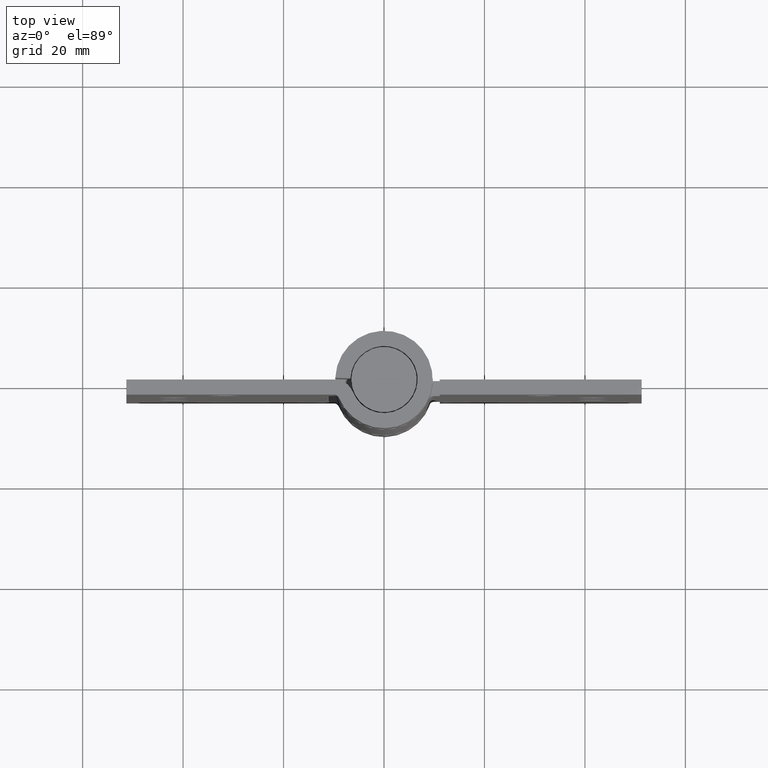
[diagram: clean part render]
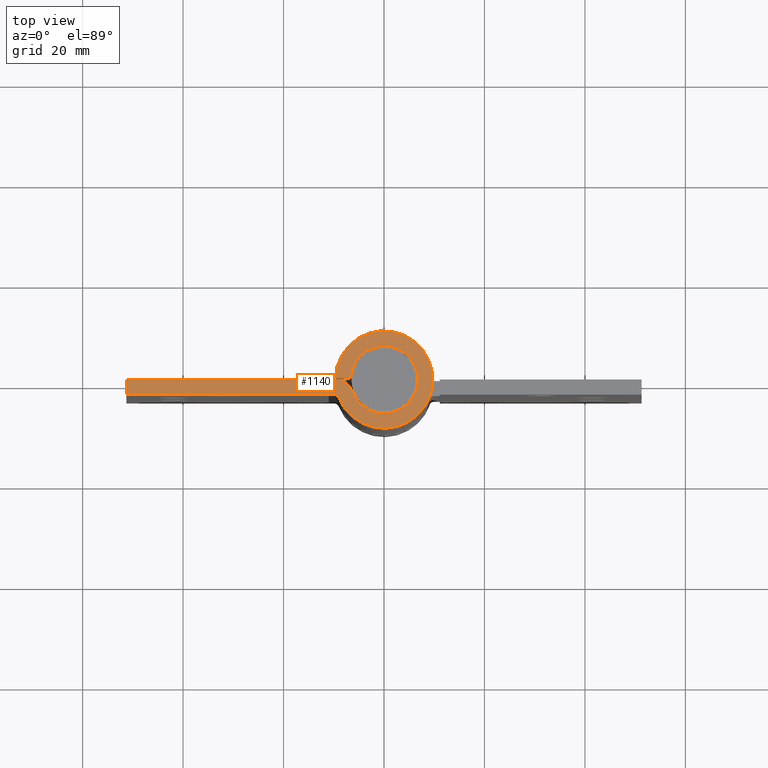
[diagram: same view with one face highlighted and labeled with its STEP entity id]
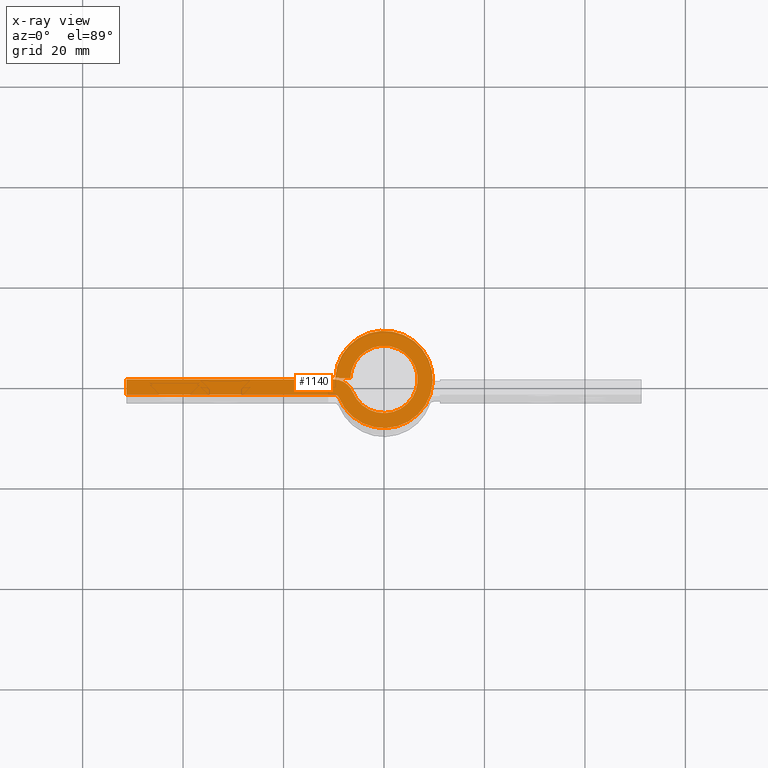
[diagram: x-ray of the same camera — body ghosted, the highlighted face saturated]
A machine part, top view. The second image highlights one B-rep face of the part: STEP entity #1140.
The next image is the same camera in x-ray: the body ghosted, the highlighted face saturated — about 0% of this face is hidden behind the body in this view.
In plain terms, the highlighted planar face has unit normal (0, -0, -1).
Its self-contained STEP definition (entity closure, byte-faithful):
#179=CIRCLE('',#1236,4.);
#182=CIRCLE('',#1242,6.7);
#191=CIRCLE('',#1262,9.7);
#192=CIRCLE('',#1263,1.);
#250=FACE_OUTER_BOUND('',#346,.T.);
#346=EDGE_LOOP('',(#962,#963,#964,#965,#966,#967,#968,#969));
#428=LINE('',#1836,#505);
#438=LINE('',#1876,#515);
#440=LINE('',#1906,#517);
#441=LINE('',#1908,#518);
#505=VECTOR('',#1469,41.3757871848695);
#515=VECTOR('',#1515,3.);
#517=VECTOR('',#1553,3.);
#518=VECTOR('',#1554,41.3757871848695);
#595=VERTEX_POINT('',#1833);
#596=VERTEX_POINT('',#1835);
#604=VERTEX_POINT('',#1857);
#607=VERTEX_POINT('',#1869);
#608=VERTEX_POINT('',#1875);
#617=VERTEX_POINT('',#1903);
#618=VERTEX_POINT('',#1905);
#619=VERTEX_POINT('',#1907);
#715=EDGE_CURVE('',#596,#595,#428,.T.);
#726=EDGE_CURVE('',#604,#596,#179,.T.);
#732=EDGE_CURVE('',#607,#604,#182,.T.);
#735=EDGE_CURVE('',#608,#607,#438,.T.);
#745=EDGE_CURVE('',#617,#608,#191,.T.);
#746=EDGE_CURVE('',#595,#618,#440,.T.);
#747=EDGE_CURVE('',#618,#619,#441,.T.);
#748=EDGE_CURVE('',#619,#617,#192,.T.);
#962=ORIENTED_EDGE('',*,*,#745,.T.);
#963=ORIENTED_EDGE('',*,*,#735,.T.);
#964=ORIENTED_EDGE('',*,*,#732,.T.);
#965=ORIENTED_EDGE('',*,*,#726,.T.);
#966=ORIENTED_EDGE('',*,*,#715,.T.);
#967=ORIENTED_EDGE('',*,*,#746,.T.);
#968=ORIENTED_EDGE('',*,*,#747,.T.);
#969=ORIENTED_EDGE('',*,*,#748,.T.);
#1082=PLANE('',#1261);
#1140=ADVANCED_FACE('',(#250),#1082,.F.);
#1236=AXIS2_PLACEMENT_3D('',#1858,#1492,#1493);
#1242=AXIS2_PLACEMENT_3D('',#1870,#1507,#1508);
#1261=AXIS2_PLACEMENT_3D('',#1902,#1549,#1550);
#1262=AXIS2_PLACEMENT_3D('',#1904,#1551,#1552);
#1263=AXIS2_PLACEMENT_3D('',#1909,#1555,#1556);
#1469=DIRECTION('',(1.,8.75637011670535E-17,0.));
#1492=DIRECTION('center_axis',(0.,0.,-1.));
#1493=DIRECTION('ref_axis',(0.,1.,0.));
#1507=DIRECTION('center_axis',(0.,0.,1.));
#1508=DIRECTION('ref_axis',(-0.999390827019096,-0.0348994967025013,0.));
#1515=DIRECTION('',(-0.999390827019096,-0.0348994967025012,0.));
#1549=DIRECTION('center_axis',(0.,0.,1.));
#1550=DIRECTION('ref_axis',(1.,0.,0.));
#1551=DIRECTION('center_axis',(0.,0.,-1.));
#1552=DIRECTION('ref_axis',(0.999390827019096,0.0348994967025013,0.));
#1553=DIRECTION('',(0.,-1.,0.));
#1554=DIRECTION('',(-1.,0.,0.));
#1555=DIRECTION('center_axis',(0.,0.,1.));
#1556=DIRECTION('ref_axis',(0.,-1.,0.));
#1833=CARTESIAN_POINT('',(51.3,3.60822483003176E-15,-50.75));
#1835=CARTESIAN_POINT('',(9.92421281513048,0.,-50.75));
#1836=CARTESIAN_POINT('',(51.3,3.62301706460752E-15,-50.75));
#1857=CARTESIAN_POINT('',(6.21422671601628,-2.50467289719626,-50.75));
#1858=CARTESIAN_POINT('Origin',(9.92421281513048,-4.,-50.75));
#1869=CARTESIAN_POINT('',(6.69591854102794,0.233826627906758,-50.75));
#1870=CARTESIAN_POINT('Origin',(0.,0.,-50.75));
#1875=CARTESIAN_POINT('',(9.69409102208523,0.338525118014262,-50.75));
#1876=CARTESIAN_POINT('',(6.69591854102794,0.233826627906758,-50.75));
#1902=CARTESIAN_POINT('Origin',(20.8,5.55111512312578E-16,-50.75));
#1903=CARTESIAN_POINT('',(8.99671629035193,-3.62616822429907,-50.75));
#1904=CARTESIAN_POINT('Origin',(0.,0.,-50.75));
#1905=CARTESIAN_POINT('',(51.3,-3.,-50.75));
#1906=CARTESIAN_POINT('',(51.3,-3.,-50.75));
#1907=CARTESIAN_POINT('',(9.92421281513048,-3.,-50.75));
#1908=CARTESIAN_POINT('',(9.92421281513048,-3.,-50.75));
#1909=CARTESIAN_POINT('Origin',(9.92421281513048,-4.,-50.75));